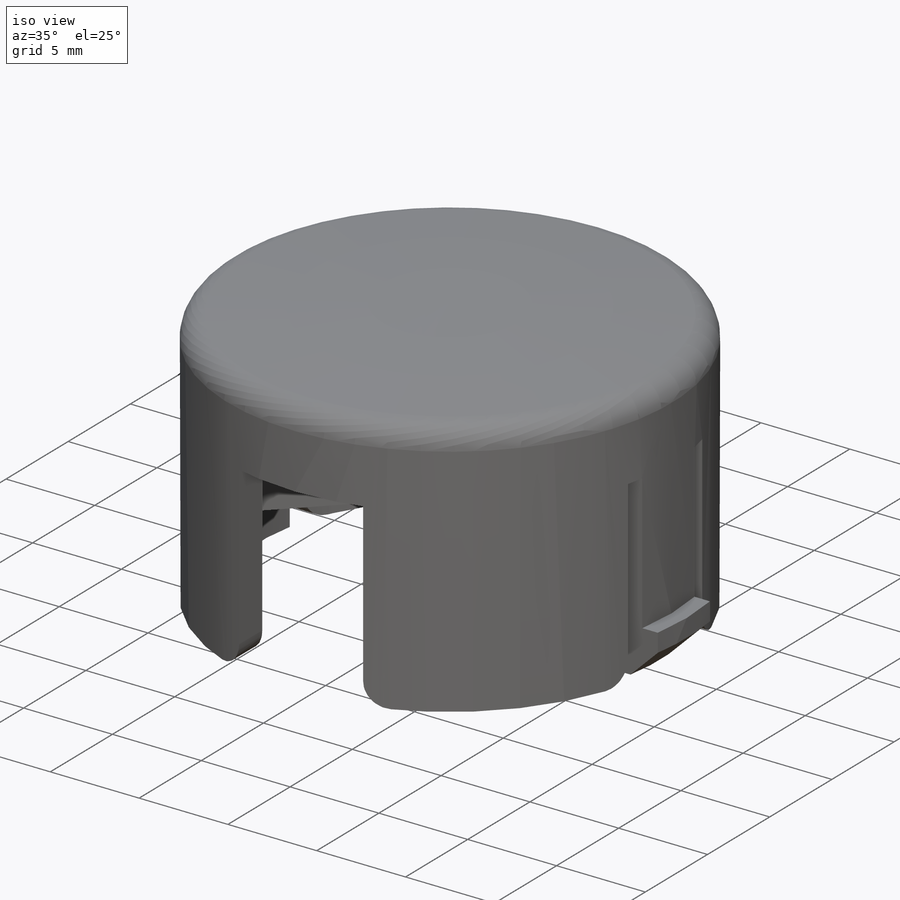
[diagram: iso view]
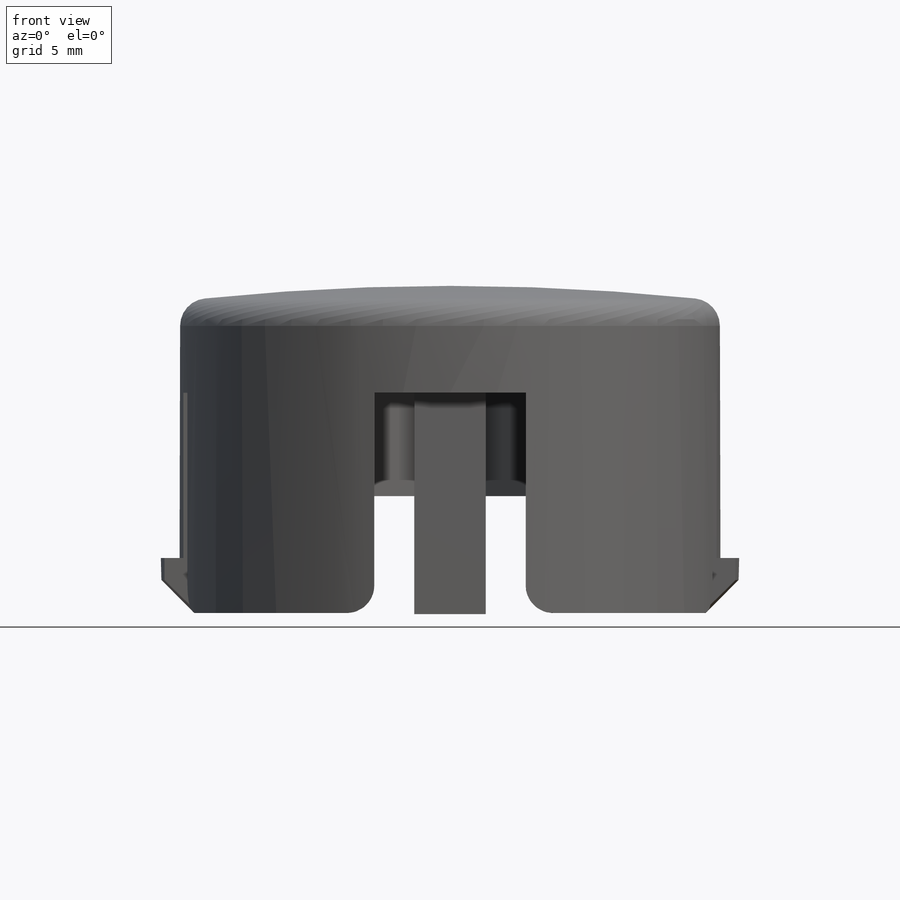
[diagram: front view]
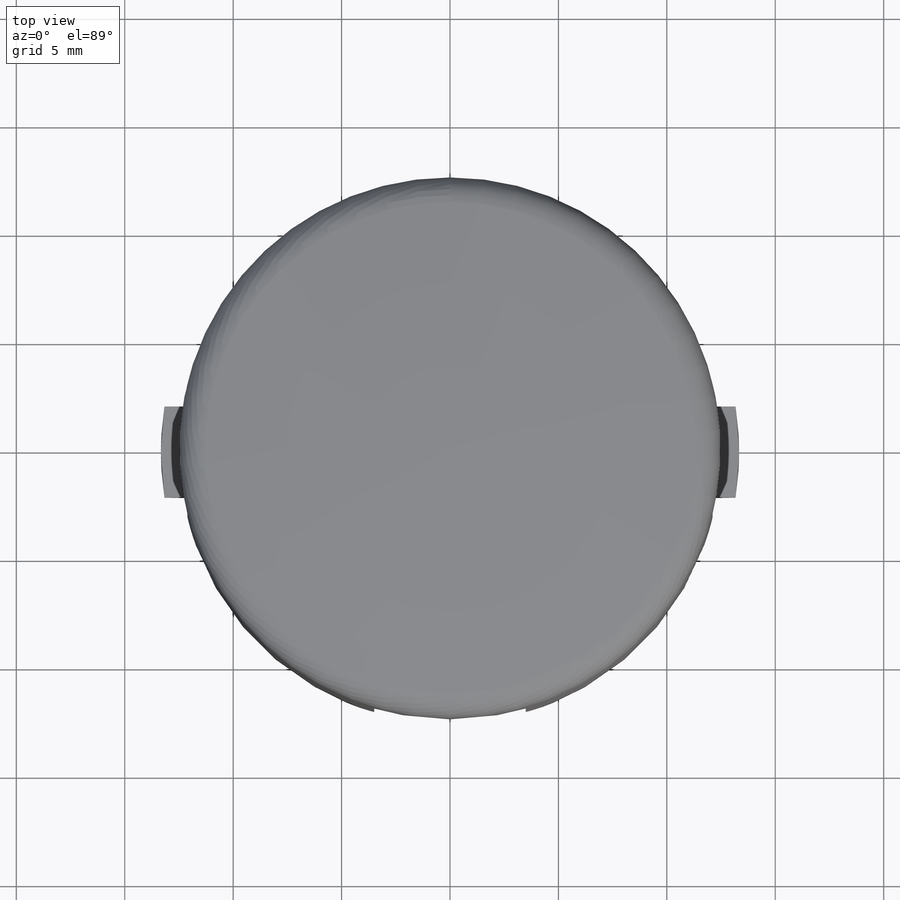
[diagram: top view]
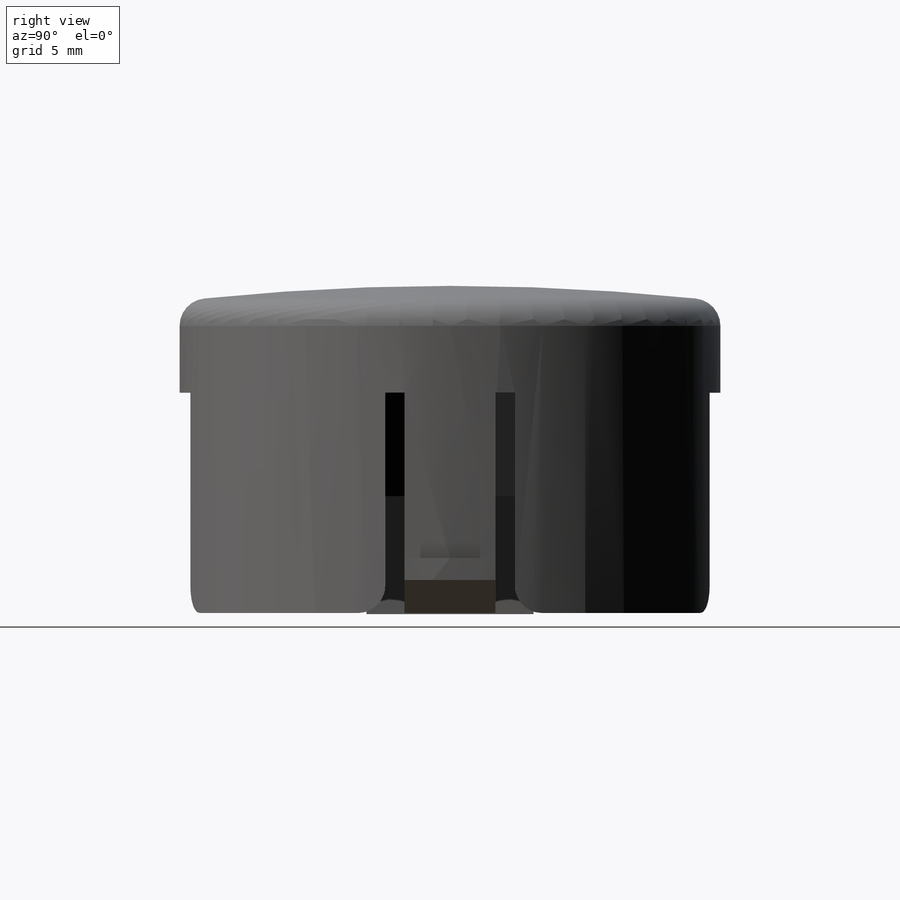
[diagram: right view]
SOLIDWORKS PART (.sldprt)
format: sldprt  version: not decoded by parser v0  size: 363,008 bytes
history: native  units: mm
features: sketch x6, extrude x3, cut_extrude x2, material x1, revolve x1, chamfer x1, fillet x1 (+11 scaffold rows collapsed)
feature tree (26):
  scaffold x11  (default folders/planes/origin — collapsed)
  material  "Matériau <non spécifié>"
  sketch  "Sketch1"  dims[D1=~21.086161mm D2=12.4714mm D3=1.778mm D4=15.0876mm]
  revolve  "dome/base"  Angle=360deg
  sketch  "Sketch2"  dims[D1=6.985mm D2=0.889mm D3=5.969mm]
  cut_extrude  "cutout"  Depth=10.16mm
  sketch  "Sketch3"  dims[D1=26.67mm]
  extrude  "tab"  Depth=2.54mm
  chamfer  "tab chmf"  Distance=1.524mm Angle=45deg
  sketch  "Sketch5"  dims[c1.D1=1.016mm c1.D2=~7.457121mm c2.D2=45.0deg c2.D3=~10.398435mm c3.D3=45.0deg]
  extrude  "cross"  Depth=7.62mm
  sketch  "Sketch4"  dims[D1=3.302mm D2=7.6962mm]
  extrude  "box"  Depth=0.0508mm
  sketch  "Sketch6"  dims[D1=0.762mm]
  cut_extrude  "boxcut"  [1 undecoded]
  fillet  "Fillet1"  Radius=1.27mm
decode coverage: 13 of 14 modeling features carry decoded parameters
note: ~ marks probable driven/reference dimensions
note: 1 parameter value undecoded
note: suppression state not decoded; provenance and decode notes live in map.json
